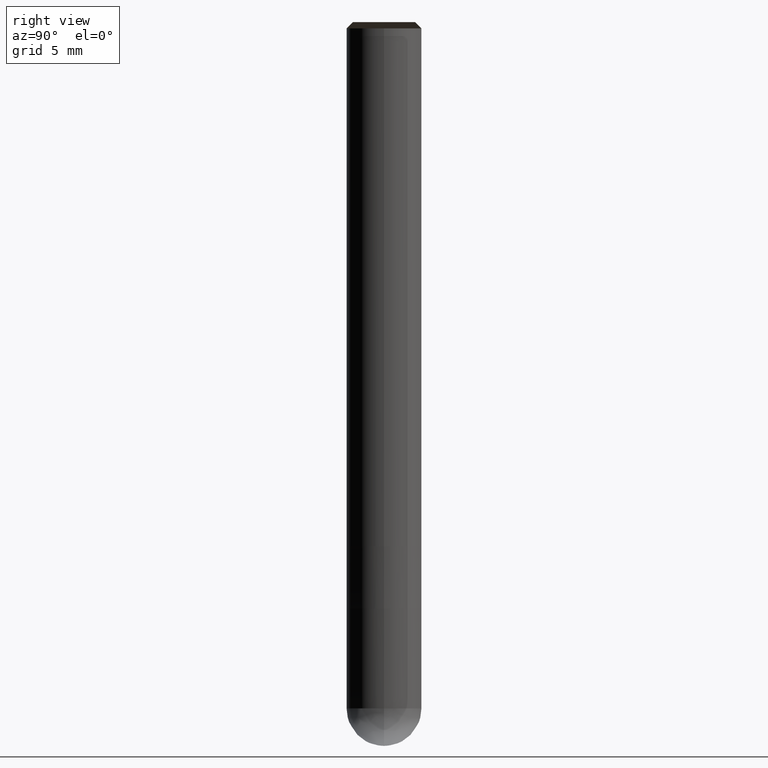
[diagram: clean part render]
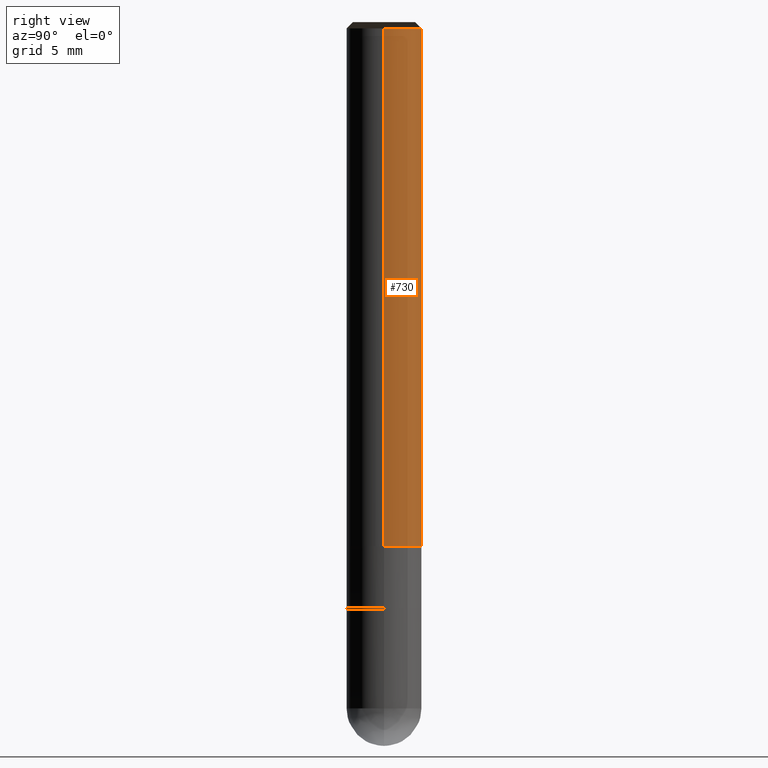
[diagram: same view with one face highlighted and labeled with its STEP entity id]
A machine part, right view. The second image highlights one B-rep face of the part: STEP entity #730.
In plain terms, the highlighted face is a freeform B-spline surface patch.
Its self-contained STEP definition (entity closure, byte-faithful):
#536=CARTESIAN_POINT('',(3.0,0.0,0.0));
#537=CARTESIAN_POINT('',(3.0,3.0,0.0));
#538=CARTESIAN_POINT('',(0.0,3.0,0.0));
#539=CARTESIAN_POINT('',(-3.0,3.0,0.0));
#540=CARTESIAN_POINT('',(-3.0,0.0,0.0));
#541=CARTESIAN_POINT('',(3.0,0.0,41.5));
#542=CARTESIAN_POINT('',(3.0,3.0,41.5));
#543=CARTESIAN_POINT('',(0.0,3.0,41.5));
#544=CARTESIAN_POINT('',(-3.0,3.0,41.5));
#545=CARTESIAN_POINT('',(-3.0,0.0,41.5));
#711=(
BOUNDED_SURFACE()
B_SPLINE_SURFACE(1,2,(
(#536,#537,#538,#539,#540),
(#541,#542,#543,#544,#545)
), .UNSPECIFIED.,.F.,.F.,.F.)
B_SPLINE_SURFACE_WITH_KNOTS((2,2),(3,2,3),(
0.0,1.0),(
0.0,0.5,1.0), .UNSPECIFIED.)
GEOMETRIC_REPRESENTATION_ITEM()
RATIONAL_B_SPLINE_SURFACE(((1.0,0.707106781187,1.0,0.707106781187,1.0),
(1.0,0.707106781187,1.0,0.707106781187,1.0)
))
REPRESENTATION_ITEM('')
SURFACE()
);
#712=(
BOUNDED_CURVE()
B_SPLINE_CURVE(2,(#540,#539,#538,#537,#536),.UNSPECIFIED.,.F.,.F.)
B_SPLINE_CURVE_WITH_KNOTS((3,2,3),
(0.0,0.5,1.0),.UNSPECIFIED.)
CURVE()
GEOMETRIC_REPRESENTATION_ITEM()
RATIONAL_B_SPLINE_CURVE((1.0,0.707106781187,1.0,0.707106781187,1.0))
REPRESENTATION_ITEM('')
);
#713=(
BOUNDED_CURVE()
B_SPLINE_CURVE(1,(#536,#541),.UNSPECIFIED.,.F.,.F.)
B_SPLINE_CURVE_WITH_KNOTS((2,2),
(0.0,1.0),.UNSPECIFIED.)
CURVE()
GEOMETRIC_REPRESENTATION_ITEM()
RATIONAL_B_SPLINE_CURVE((1.0,1.0))
REPRESENTATION_ITEM('')
);
#714=(
BOUNDED_CURVE()
B_SPLINE_CURVE(2,(#541,#542,#543,#544,#545),.UNSPECIFIED.,.F.,.F.)
B_SPLINE_CURVE_WITH_KNOTS((3,2,3),
(0.0,0.5,1.0),.UNSPECIFIED.)
CURVE()
GEOMETRIC_REPRESENTATION_ITEM()
RATIONAL_B_SPLINE_CURVE((1.0,0.707106781187,1.0,0.707106781187,1.0))
REPRESENTATION_ITEM('')
);
#715=(
BOUNDED_CURVE()
B_SPLINE_CURVE(1,(#545,#540),.UNSPECIFIED.,.F.,.F.)
B_SPLINE_CURVE_WITH_KNOTS((2,2),
(0.0,1.0),.UNSPECIFIED.)
CURVE()
GEOMETRIC_REPRESENTATION_ITEM()
RATIONAL_B_SPLINE_CURVE((1.0,1.0))
REPRESENTATION_ITEM('')
);
#716=VERTEX_POINT('',#536);
#717=VERTEX_POINT('',#540);
#718=VERTEX_POINT('',#541);
#719=VERTEX_POINT('',#545);
#720=EDGE_CURVE('',#717,#716,#712,.T.);
#721=EDGE_CURVE('',#716,#718,#713,.T.);
#722=EDGE_CURVE('',#718,#719,#714,.T.);
#723=EDGE_CURVE('',#719,#717,#715,.T.);
#724=ORIENTED_EDGE('',*,*,#720,.T.);
#725=ORIENTED_EDGE('',*,*,#721,.T.);
#726=ORIENTED_EDGE('',*,*,#722,.T.);
#727=ORIENTED_EDGE('',*,*,#723,.T.);
#728=EDGE_LOOP('',(#724,#725,#726,#727));
#729=FACE_OUTER_BOUND('',#728,.T.);
#730=ADVANCED_FACE('',(#729),#711,.T.);